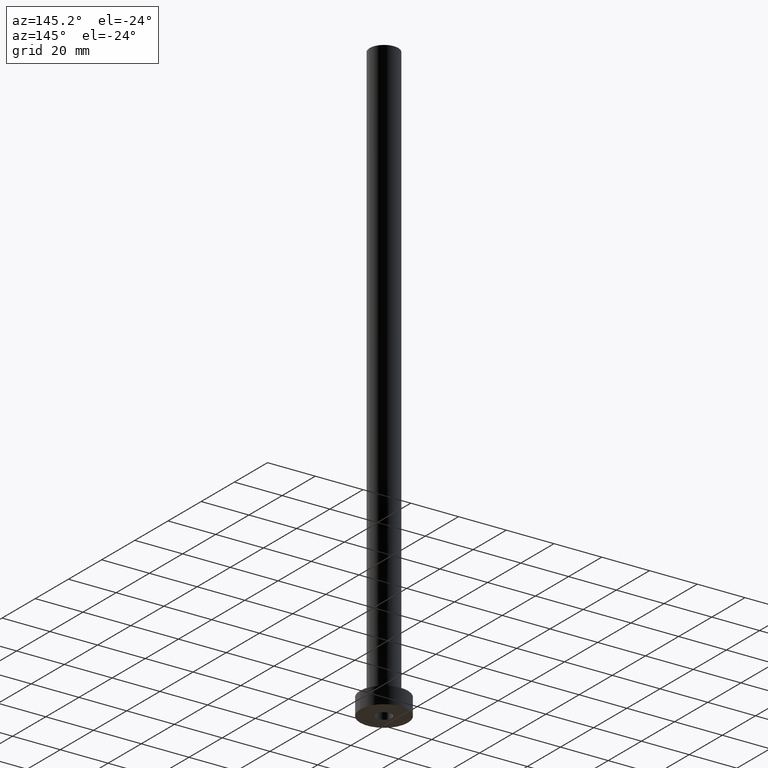
[diagram: clean part render]
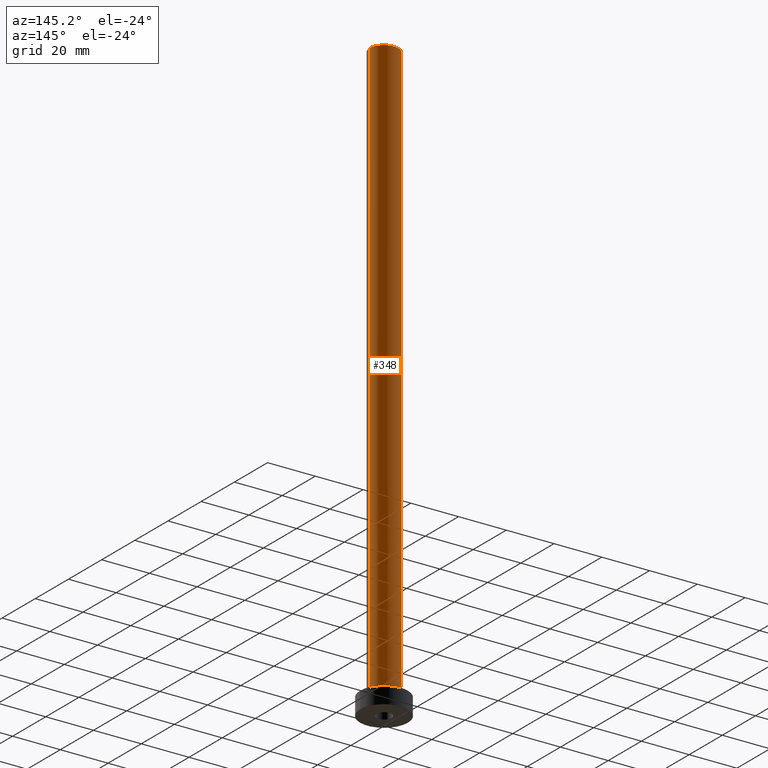
[diagram: same view with one face highlighted and labeled with its STEP entity id]
A machine part, auxiliary view. The second image highlights one B-rep face of the part: STEP entity #348.
In plain terms, the highlighted cylindrical surface (edge-blend (fillet) strip) has radius 6 mm, axis along (-0, -0, -1).
Its self-contained STEP definition (entity closure, byte-faithful):
#13 = CYLINDRICAL_SURFACE ( 'NONE', #128, 6.000000000000000888 ) ;
#15 = CARTESIAN_POINT ( 'NONE',  ( 0.000000000000000000, 0.000000000000000000, 7.500000000000007105 ) ) ;
#18 = CARTESIAN_POINT ( 'NONE',  ( 0.000000000000000000, 0.000000000000000000, 250.0000000000000000 ) ) ;
#48 = CIRCLE ( 'NONE', #82, 6.000000000000000888 ) ;
#56 = DIRECTION ( 'NONE',  ( 0.000000000000000000, 0.000000000000000000, 1.000000000000000000 ) ) ;
#62 = VERTEX_POINT ( 'NONE', #340 ) ;
#74 = EDGE_CURVE ( 'NONE', #62, #341, #48, .T. ) ;
#82 = AXIS2_PLACEMENT_3D ( 'NONE', #18, #373, #417 ) ;
#86 = CARTESIAN_POINT ( 'NONE',  ( -6.000000000000000888, 0.000000000000000000, 7.500000000000007105 ) ) ;
#91 = DIRECTION ( 'NONE',  ( -0.000000000000000000, -0.000000000000000000, -1.000000000000000000 ) ) ;
#128 = AXIS2_PLACEMENT_3D ( 'NONE', #151, #91, #228 ) ;
#129 = ORIENTED_EDGE ( 'NONE', *, *, #182, .F. ) ;
#151 = CARTESIAN_POINT ( 'NONE',  ( 0.000000000000000000, 0.000000000000000000, 250.0000000000000000 ) ) ;
#155 = VECTOR ( 'NONE', #416, 1000.000000000000000 ) ;
#182 = EDGE_CURVE ( 'NONE', #341, #420, #280, .T. ) ;
#183 = CARTESIAN_POINT ( 'NONE',  ( -6.000000000000000888, 0.000000000000000000, 250.0000000000000000 ) ) ;
#187 = FACE_OUTER_BOUND ( 'NONE', #264, .T. ) ;
#189 = VECTOR ( 'NONE', #403, 1000.000000000000000 ) ;
#196 = DIRECTION ( 'NONE',  ( 1.000000000000000000, 0.000000000000000000, 0.000000000000000000 ) ) ;
#199 = ORIENTED_EDGE ( 'NONE', *, *, #251, .T. ) ;
#220 = CARTESIAN_POINT ( 'NONE',  ( 6.000000000000000888, 7.347880794884120722E-16, 250.0000000000000000 ) ) ;
#226 = EDGE_CURVE ( 'NONE', #62, #233, #372, .T. ) ;
#228 = DIRECTION ( 'NONE',  ( -1.000000000000000000, 0.000000000000000000, 0.000000000000000000 ) ) ;
#233 = VERTEX_POINT ( 'NONE', #406 ) ;
#251 = EDGE_CURVE ( 'NONE', #233, #420, #366, .T. ) ;
#264 = EDGE_LOOP ( 'NONE', ( #312, #351, #199, #129 ) ) ;
#280 = LINE ( 'NONE', #183, #189 ) ;
#305 = AXIS2_PLACEMENT_3D ( 'NONE', #15, #56, #196 ) ;
#312 = ORIENTED_EDGE ( 'NONE', *, *, #74, .F. ) ;
#340 = CARTESIAN_POINT ( 'NONE',  ( 6.000000000000000888, 7.347880794884120722E-16, 250.0000000000000000 ) ) ;
#341 = VERTEX_POINT ( 'NONE', #368 ) ;
#348 = ADVANCED_FACE ( 'NONE', ( #187 ), #13, .T. ) ;
#351 = ORIENTED_EDGE ( 'NONE', *, *, #226, .T. ) ;
#366 = CIRCLE ( 'NONE', #305, 6.000000000000000888 ) ;
#368 = CARTESIAN_POINT ( 'NONE',  ( -6.000000000000000888, 0.000000000000000000, 250.0000000000000000 ) ) ;
#372 = LINE ( 'NONE', #220, #155 ) ;
#373 = DIRECTION ( 'NONE',  ( 0.000000000000000000, 0.000000000000000000, 1.000000000000000000 ) ) ;
#403 = DIRECTION ( 'NONE',  ( -0.000000000000000000, -0.000000000000000000, -1.000000000000000000 ) ) ;
#406 = CARTESIAN_POINT ( 'NONE',  ( 6.000000000000000888, 7.347880794884120722E-16, 7.500000000000007105 ) ) ;
#416 = DIRECTION ( 'NONE',  ( -0.000000000000000000, -0.000000000000000000, -1.000000000000000000 ) ) ;
#417 = DIRECTION ( 'NONE',  ( 1.000000000000000000, 0.000000000000000000, 0.000000000000000000 ) ) ;
#420 = VERTEX_POINT ( 'NONE', #86 ) ;